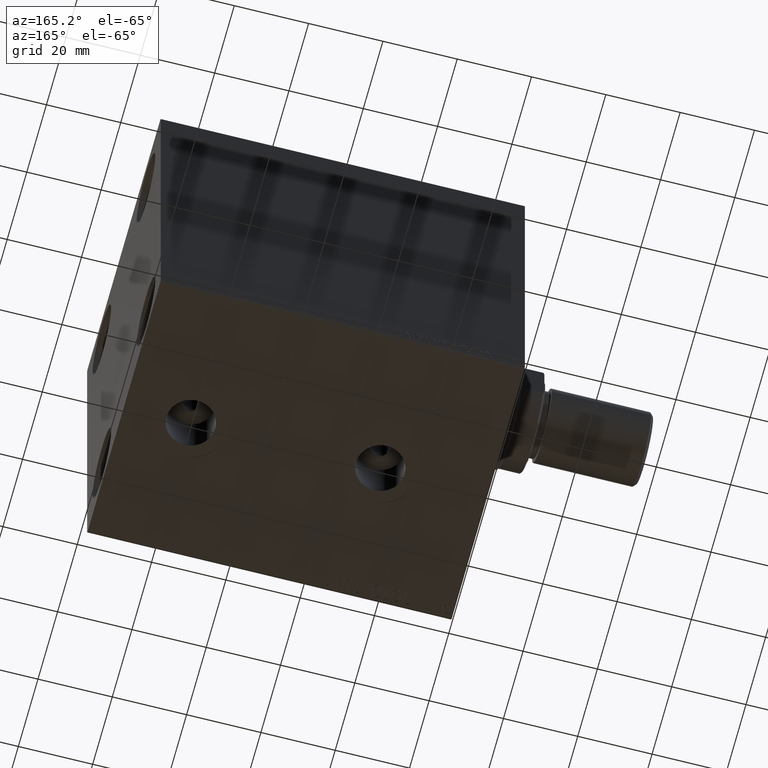
[diagram: clean part render]
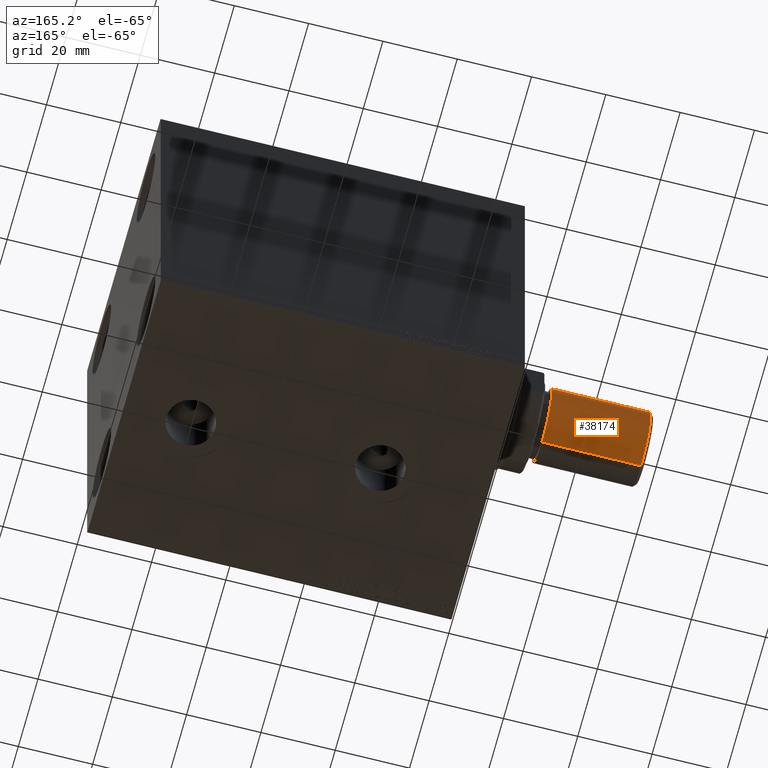
[diagram: same view with one face highlighted and labeled with its STEP entity id]
A machine part, auxiliary view. The second image highlights one B-rep face of the part: STEP entity #38174.
In plain terms, the highlighted cylindrical surface (partial cylindrical patch) has radius 10 mm, axis along (-1, -0, 0).
Its self-contained STEP definition (entity closure, byte-faithful):
#217 = DIRECTION ( 'NONE',  ( -0.000000000000000000, -0.000000000000000000, -1.000000000000000000 ) ) ;
#439 = CARTESIAN_POINT ( 'NONE',  ( 0.000000000000000000, 0.000000000000000000, 0.7999999999999986011 ) ) ;
#4003 = CIRCLE ( 'NONE', #34350, 10.00000000000000000 ) ;
#4478 = CARTESIAN_POINT ( 'NONE',  ( 0.000000000000000000, 0.000000000000000000, 27.50000000000000000 ) ) ;
#6351 = CARTESIAN_POINT ( 'NONE',  ( -10.00000000000000000, 0.000000000000000000, 0.7999999999999986011 ) ) ;
#6482 = DIRECTION ( 'NONE',  ( -0.000000000000000000, -0.000000000000000000, 1.000000000000000000 ) ) ;
#6504 = VERTEX_POINT ( 'NONE', #6351 ) ;
#9428 = VECTOR ( 'NONE', #217, 1000.000000000000000 ) ;
#10464 = FACE_OUTER_BOUND ( 'NONE', #37985, .T. ) ;
#14210 = VERTEX_POINT ( 'NONE', #23008 ) ;
#14572 = ORIENTED_EDGE ( 'NONE', *, *, #24495, .T. ) ;
#17107 = EDGE_CURVE ( 'NONE', #45614, #6504, #18983, .T. ) ;
#17723 = EDGE_CURVE ( 'NONE', #31315, #6504, #18013, .T. ) ;
#18013 = LINE ( 'NONE', #32178, #9428 ) ;
#18983 = CIRCLE ( 'NONE', #44895, 10.00000000000000000 ) ;
#19241 = EDGE_CURVE ( 'NONE', #14210, #31315, #4003, .T. ) ;
#20602 = DIRECTION ( 'NONE',  ( 1.000000000000000000, 0.000000000000000000, 0.000000000000000000 ) ) ;
#23008 = CARTESIAN_POINT ( 'NONE',  ( 10.00000000000000000, 1.224646799147353256E-15, 27.50000000000000000 ) ) ;
#24245 = ORIENTED_EDGE ( 'NONE', *, *, #17107, .T. ) ;
#24495 = EDGE_CURVE ( 'NONE', #14210, #45614, #28562, .T. ) ;
#24587 = DIRECTION ( 'NONE',  ( -1.000000000000000000, 0.000000000000000000, 0.000000000000000000 ) ) ;
#24707 = CARTESIAN_POINT ( 'NONE',  ( -10.00000000000000000, 0.000000000000000000, 27.50000000000000000 ) ) ;
#25269 = ORIENTED_EDGE ( 'NONE', *, *, #17723, .F. ) ;
#26015 = DIRECTION ( 'NONE',  ( 0.000000000000000000, 0.000000000000000000, 1.000000000000000000 ) ) ;
#26584 = AXIS2_PLACEMENT_3D ( 'NONE', #42196, #28751, #24587 ) ;
#28078 = CYLINDRICAL_SURFACE ( 'NONE', #26584, 10.00000000000000000 ) ;
#28562 = LINE ( 'NONE', #42681, #43338 ) ;
#28751 = DIRECTION ( 'NONE',  ( -0.000000000000000000, -0.000000000000000000, -1.000000000000000000 ) ) ;
#29232 = DIRECTION ( 'NONE',  ( -0.000000000000000000, -0.000000000000000000, -1.000000000000000000 ) ) ;
#29992 = ORIENTED_EDGE ( 'NONE', *, *, #19241, .F. ) ;
#31315 = VERTEX_POINT ( 'NONE', #24707 ) ;
#32178 = CARTESIAN_POINT ( 'NONE',  ( -10.00000000000000000, 0.000000000000000000, 27.50000000000000000 ) ) ;
#34097 = CARTESIAN_POINT ( 'NONE',  ( 10.00000000000000000, 1.224646799147353256E-15, 0.7999999999999986011 ) ) ;
#34350 = AXIS2_PLACEMENT_3D ( 'NONE', #4478, #26015, #36000 ) ;
#36000 = DIRECTION ( 'NONE',  ( 1.000000000000000000, 0.000000000000000000, 0.000000000000000000 ) ) ;
#37985 = EDGE_LOOP ( 'NONE', ( #29992, #14572, #24245, #25269 ) ) ;
#38174 = ADVANCED_FACE ( 'NONE', ( #10464 ), #28078, .T. ) ;
#42196 = CARTESIAN_POINT ( 'NONE',  ( 0.000000000000000000, 0.000000000000000000, 27.50000000000000000 ) ) ;
#42681 = CARTESIAN_POINT ( 'NONE',  ( 10.00000000000000000, 1.224646799147353256E-15, 27.50000000000000000 ) ) ;
#43338 = VECTOR ( 'NONE', #29232, 1000.000000000000000 ) ;
#44895 = AXIS2_PLACEMENT_3D ( 'NONE', #439, #6482, #20602 ) ;
#45614 = VERTEX_POINT ( 'NONE', #34097 ) ;